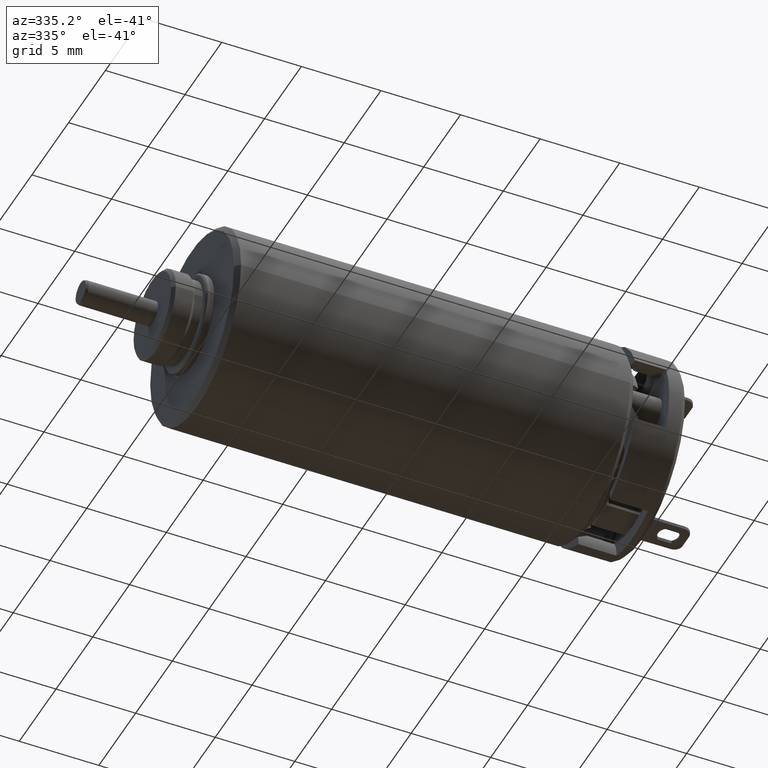
[diagram: clean part render]
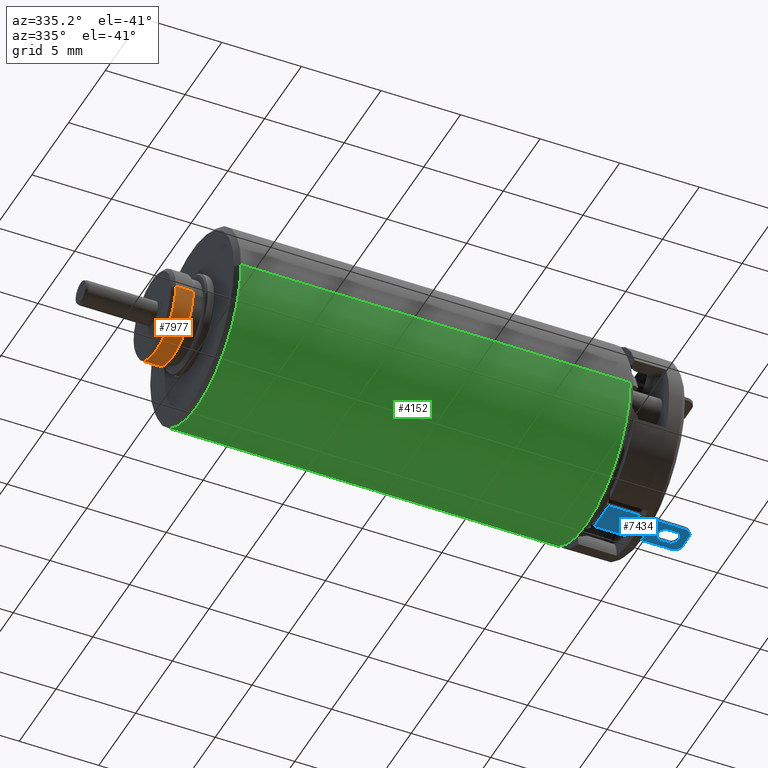
[diagram: same view with three faces highlighted in distinct colors, each labeled with its STEP entity id]
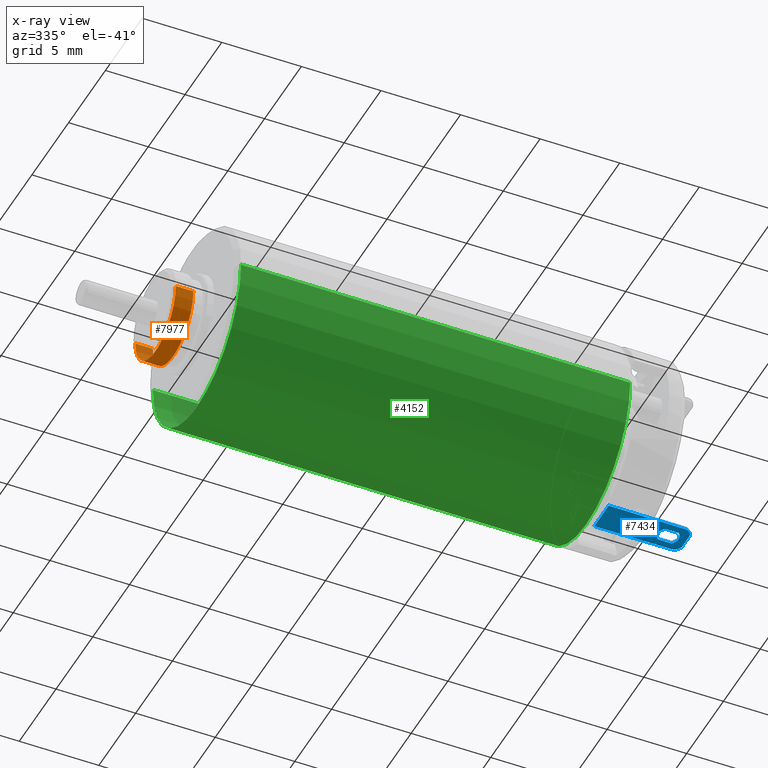
[diagram: x-ray of the same camera — body ghosted, the three highlighted faces saturated]
A machine part, auxiliary view with three faces highlighted in distinct colors.
The next image is the same camera in x-ray (body ghosted, the three faces saturated) — at least one of them is partly hidden behind the body in this view.
Their STEP definitions:

[orange] entity #7977 — the highlighted cylindrical surface (partial cylindrical patch) has radius 2.75 mm, axis along (1, 0, 0).
#3291=CARTESIAN_POINT('',(-1.029999164351E1,0.E0,0.E0));
#3292=DIRECTION('',(-1.E0,0.E0,0.E0));
#3293=DIRECTION('',(0.E0,1.E0,2.060573974150E-13));
#3294=AXIS2_PLACEMENT_3D('',#3291,#3292,#3293);
#3296=DIRECTION('',(-9.999999999792E-1,6.453108438860E-6,7.994933128102E-9));
#3297=VECTOR('',#3296,1.099992905266E0);
#3298=CARTESIAN_POINT('',(-9.2E0,-2.75E0,-5.666578428911E-13));
#3299=LINE('',#3298,#3297);
#3300=CARTESIAN_POINT('',(-9.2E0,0.E0,0.E0));
#3301=DIRECTION('',(-1.E0,0.E0,0.E0));
#3302=DIRECTION('',(0.E0,1.E0,2.060573974150E-13));
#3303=AXIS2_PLACEMENT_3D('',#3300,#3301,#3302);
#3305=DIRECTION('',(-9.999999999792E-1,-6.453108443301E-6,-7.994933658811E-9));
#3306=VECTOR('',#3305,1.099992905266E0);
#3307=CARTESIAN_POINT('',(-9.2E0,2.75E0,5.666578428911E-13));
#3308=LINE('',#3307,#3306);
#3895=CARTESIAN_POINT('',(-9.2E0,2.75E0,5.666578428911E-13));
#3896=VERTEX_POINT('',#3895);
#3901=CARTESIAN_POINT('',(-9.2E0,-2.75E0,-5.666578428911E-13));
#3902=VERTEX_POINT('',#3901);
#3915=CARTESIAN_POINT('',(-1.029999164351E1,2.75E0,5.666578428911E-13));
#3916=CARTESIAN_POINT('',(-1.029999164351E1,-2.75E0,-5.669946207609E-13));
#3917=VERTEX_POINT('',#3915);
#3918=VERTEX_POINT('',#3916);
#7966=CARTESIAN_POINT('',(-1.0625E1,0.E0,0.E0));
#7967=DIRECTION('',(1.E0,0.E0,0.E0));
#7968=DIRECTION('',(0.E0,-1.E0,-2.059349327350E-13));
#7969=AXIS2_PLACEMENT_3D('',#7966,#7967,#7968);
#7970=CYLINDRICAL_SURFACE('',#7969,2.75E0);
#7971=ORIENTED_EDGE('',*,*,#7960,.T.);
#7972=ORIENTED_EDGE('',*,*,#7916,.F.);
#7973=ORIENTED_EDGE('',*,*,#7885,.F.);
#7974=ORIENTED_EDGE('',*,*,#7913,.T.);
#7975=EDGE_LOOP('',(#7971,#7972,#7973,#7974));
#7976=FACE_OUTER_BOUND('',#7975,.F.);
#7977=ADVANCED_FACE('',(#7976),#7970,.T.);
#3295=CIRCLE('',#3294,2.75E0);
#3304=CIRCLE('',#3303,2.75E0);
#7885=EDGE_CURVE('',#3896,#3902,#3304,.T.);
#7913=EDGE_CURVE('',#3896,#3917,#3308,.T.);
#7916=EDGE_CURVE('',#3902,#3918,#3299,.T.);
#7960=EDGE_CURVE('',#3917,#3918,#3295,.T.);

[blue] entity #7434 — the highlighted planar face has unit normal (0, 0, 1).
#2862=DIRECTION('',(-9.710336368109E-14,1.E0,-1.393613089868E-14));
#2863=VECTOR('',#2862,1.975694058192E0);
#2864=CARTESIAN_POINT('',(1.781E1,-7.878470290962E-1,-4.8E0));
#2865=LINE('',#2864,#2863);
#2906=DIRECTION('',(9.999744907720E-1,7.142674934089E-3,3.883937404355E-14));
#2907=VECTOR('',#2906,4.802277913333E0);
#2908=CARTESIAN_POINT('',(1.781E1,-7.878470290962E-1,-4.8E0));
#2909=LINE('',#2908,#2907);
#2910=CARTESIAN_POINT('',(2.260858407346E1,-2.535586736321E-1,-4.8E0));
#2911=DIRECTION('',(0.E0,0.E0,1.E0));
#2912=DIRECTION('',(7.142674934649E-3,-9.999744907720E-1,0.E0));
#2913=AXIS2_PLACEMENT_3D('',#2910,#2911,#2912);
#2915=DIRECTION('',(0.E0,1.E0,0.E0));
#2916=VECTOR('',#2915,9.071173472633E-1);
#2917=CARTESIAN_POINT('',(2.310858407346E1,-2.535586736312E-1,-4.8E0));
#2918=LINE('',#2917,#2916);
#2919=CARTESIAN_POINT('',(2.260858407346E1,6.535586736321E-1,-4.8E0));
#2920=DIRECTION('',(0.E0,0.E0,1.E0));
#2921=DIRECTION('',(1.E0,0.E0,0.E0));
#2922=AXIS2_PLACEMENT_3D('',#2919,#2920,#2921);
#2924=DIRECTION('',(-9.999744907720E-1,7.142674934061E-3,-4.438785604978E-14));
#2925=VECTOR('',#2924,4.802277913332E0);
#2926=CARTESIAN_POINT('',(2.261215541093E1,1.153545919018E0,-4.8E0));
#2927=LINE('',#2926,#2925);
#2928=CARTESIAN_POINT('',(2.200858407346E1,2.E-1,-4.799999999999E0));
#2929=DIRECTION('',(0.E0,0.E0,-1.E0));
#2930=DIRECTION('',(-6.389710663776E-1,-7.692307692314E-1,0.E0));
#2931=AXIS2_PLACEMENT_3D('',#2928,#2929,#2930);
#2933=CARTESIAN_POINT('',(2.200858407346E1,2.E-1,-4.799999999999E0));
#2934=DIRECTION('',(0.E0,0.E0,-1.E0));
#2935=DIRECTION('',(6.389710663788E-1,7.692307692304E-1,0.E0));
#2936=AXIS2_PLACEMENT_3D('',#2933,#2934,#2935);
#2942=DIRECTION('',(-1.E0,1.567708034244E-12,0.E0));
#2943=VECTOR('',#2942,8.306623862917E-1);
#2944=CARTESIAN_POINT('',(2.242391526661E1,-3.000000000013E-1,-4.8E0));
#2945=LINE('',#2944,#2943);
#2958=DIRECTION('',(1.E0,2.377190425588E-12,0.E0));
#2959=VECTOR('',#2958,8.306623862956E-1);
#2960=CARTESIAN_POINT('',(2.159325288031E1,6.999999999980E-1,-4.8E0));
#2961=LINE('',#2960,#2959);
#3763=CARTESIAN_POINT('',(1.781E1,1.187847029096E0,-4.8E0));
#3764=VERTEX_POINT('',#3763);
#3765=CARTESIAN_POINT('',(2.261215541093E1,1.153545919018E0,-4.8E0));
#3766=VERTEX_POINT('',#3765);
#3767=CARTESIAN_POINT('',(1.781E1,-7.878470290962E-1,-4.8E0));
#3768=VERTEX_POINT('',#3767);
#3769=CARTESIAN_POINT('',(2.261215541093E1,-7.535459190181E-1,-4.8E0));
#3770=VERTEX_POINT('',#3769);
#3771=CARTESIAN_POINT('',(2.310858407346E1,-2.535586736312E-1,-4.8E0));
#3772=VERTEX_POINT('',#3771);
#3773=CARTESIAN_POINT('',(2.310858407346E1,6.535586736321E-1,-4.8E0));
#3774=VERTEX_POINT('',#3773);
#3775=CARTESIAN_POINT('',(2.242391526661E1,-3.000000000013E-1,-4.8E0));
#3776=CARTESIAN_POINT('',(2.159325288032E1,-3.E-1,-4.8E0));
#3777=VERTEX_POINT('',#3775);
#3778=VERTEX_POINT('',#3776);
#3779=CARTESIAN_POINT('',(2.242391526661E1,7.000000000018E-1,
-4.799999999999E0));
#3780=VERTEX_POINT('',#3779);
#3781=CARTESIAN_POINT('',(2.159325288031E1,6.999999999980E-1,-4.8E0));
#3782=VERTEX_POINT('',#3781);
#7411=CARTESIAN_POINT('',(2.045929203673E1,2.E-1,-4.8E0));
#7412=DIRECTION('',(0.E0,0.E0,1.E0));
#7413=DIRECTION('',(0.E0,-1.E0,0.E0));
#7414=AXIS2_PLACEMENT_3D('',#7411,#7412,#7413);
#7415=PLANE('',#7414);
#7416=ORIENTED_EDGE('',*,*,#7292,.F.);
#7417=ORIENTED_EDGE('',*,*,#7365,.T.);
#7418=ORIENTED_EDGE('',*,*,#7378,.T.);
#7419=ORIENTED_EDGE('',*,*,#7392,.T.);
#7420=ORIENTED_EDGE('',*,*,#7405,.T.);
#7421=ORIENTED_EDGE('',*,*,#7218,.T.);
#7422=EDGE_LOOP('',(#7416,#7417,#7418,#7419,#7420,#7421));
#7423=FACE_OUTER_BOUND('',#7422,.F.);
#7425=ORIENTED_EDGE('',*,*,#7424,.T.);
#7427=ORIENTED_EDGE('',*,*,#7426,.T.);
#7429=ORIENTED_EDGE('',*,*,#7428,.T.);
#7431=ORIENTED_EDGE('',*,*,#7430,.T.);
#7432=EDGE_LOOP('',(#7425,#7427,#7429,#7431));
#7433=FACE_BOUND('',#7432,.F.);
#7434=ADVANCED_FACE('',(#7423,#7433),#7415,.F.);
#2914=CIRCLE('',#2913,5.E-1);
#2923=CIRCLE('',#2922,5.E-1);
#2932=CIRCLE('',#2931,6.499999999962E-1);
#2937=CIRCLE('',#2936,6.500000000026E-1);
#7218=EDGE_CURVE('',#3766,#3764,#2927,.T.);
#7292=EDGE_CURVE('',#3768,#3764,#2865,.T.);
#7365=EDGE_CURVE('',#3768,#3770,#2909,.T.);
#7378=EDGE_CURVE('',#3770,#3772,#2914,.T.);
#7392=EDGE_CURVE('',#3772,#3774,#2918,.T.);
#7405=EDGE_CURVE('',#3774,#3766,#2923,.T.);
#7424=EDGE_CURVE('',#3777,#3778,#2945,.T.);
#7426=EDGE_CURVE('',#3778,#3782,#2932,.T.);
#7428=EDGE_CURVE('',#3782,#3780,#2961,.T.);
#7430=EDGE_CURVE('',#3780,#3777,#2937,.T.);

[green] entity #4152 — the highlighted cylindrical surface (partial cylindrical patch) has radius 6 mm, axis along (-1, 0, 0).
#19=CARTESIAN_POINT('',(-7.699997107768E0,0.E0,0.E0));
#20=DIRECTION('',(1.E0,0.E0,0.E0));
#21=DIRECTION('',(0.E0,-1.E0,0.E0));
#22=AXIS2_PLACEMENT_3D('',#19,#20,#21);
#24=DIRECTION('',(1.E0,9.820329545938E-9,-1.085391462231E-11));
#25=VECTOR('',#24,2.445000130628E1);
#26=CARTESIAN_POINT('',(-7.700000773356E0,-6.000000772906E0,
-1.519321831742E-10));
#27=LINE('',#26,#25);
#28=DIRECTION('',(-1.E0,9.820329400633E-9,-1.085354908867E-11));
#29=VECTOR('',#28,2.445000130628E1);
#30=CARTESIAN_POINT('',(1.675000053292E1,6.000000532799E0,4.173100768009E-10));
#31=LINE('',#30,#29);
#32=CARTESIAN_POINT('',(1.675000106584E1,0.E0,0.E0));
#33=DIRECTION('',(-1.E0,0.E0,0.E0));
#34=DIRECTION('',(0.E0,1.E0,0.E0));
#35=AXIS2_PLACEMENT_3D('',#32,#33,#34);
#3506=CARTESIAN_POINT('',(1.674999892899E1,6.E0,0.E0));
#3507=CARTESIAN_POINT('',(1.674999892899E1,-6.E0,-1.232945036884E-12));
#3508=VERTEX_POINT('',#3506);
#3509=VERTEX_POINT('',#3507);
#3939=CARTESIAN_POINT('',(-7.699997107768E0,6.E0,0.E0));
#3940=CARTESIAN_POINT('',(-7.699997107768E0,-6.E0,0.E0));
#3941=VERTEX_POINT('',#3939);
#3942=VERTEX_POINT('',#3940);
#4140=CARTESIAN_POINT('',(1.724200410286E1,0.E0,0.E0));
#4141=DIRECTION('',(-1.E0,0.E0,0.E0));
#4142=DIRECTION('',(0.E0,1.E0,0.E0));
#4143=AXIS2_PLACEMENT_3D('',#4140,#4141,#4142);
#4144=CYLINDRICAL_SURFACE('',#4143,6.E0);
#4145=ORIENTED_EDGE('',*,*,#4131,.F.);
#4146=ORIENTED_EDGE('',*,*,#4106,.T.);
#4148=ORIENTED_EDGE('',*,*,#4147,.F.);
#4149=ORIENTED_EDGE('',*,*,#4103,.T.);
#4150=EDGE_LOOP('',(#4145,#4146,#4148,#4149));
#4151=FACE_OUTER_BOUND('',#4150,.F.);
#4152=ADVANCED_FACE('',(#4151),#4144,.T.);
#23=CIRCLE('',#22,6.E0);
#36=CIRCLE('',#35,6.000001065599E0);
#4103=EDGE_CURVE('',#3508,#3941,#31,.T.);
#4106=EDGE_CURVE('',#3942,#3509,#27,.T.);
#4131=EDGE_CURVE('',#3942,#3941,#23,.T.);
#4147=EDGE_CURVE('',#3508,#3509,#36,.T.);